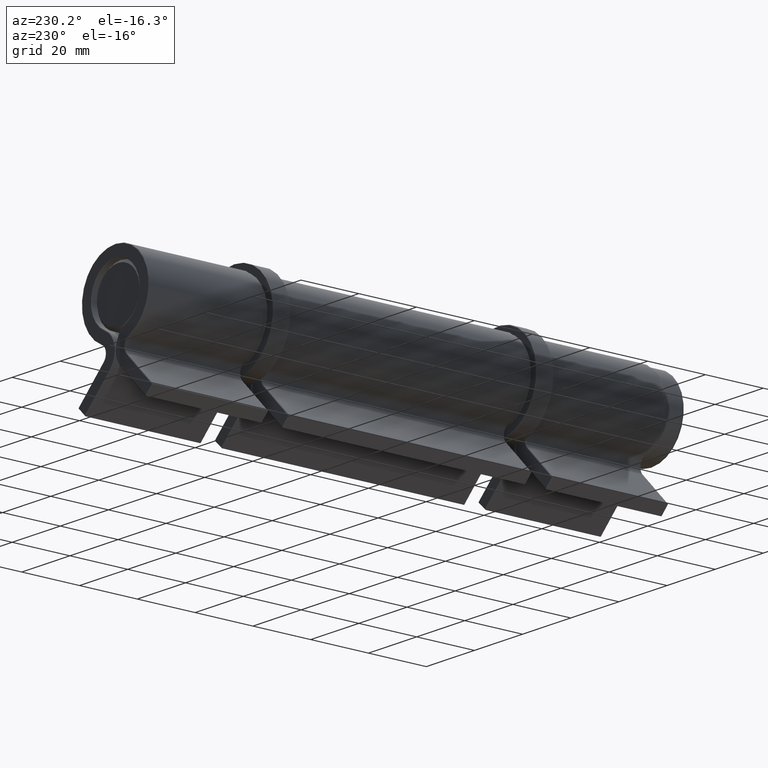
[diagram: clean part render]
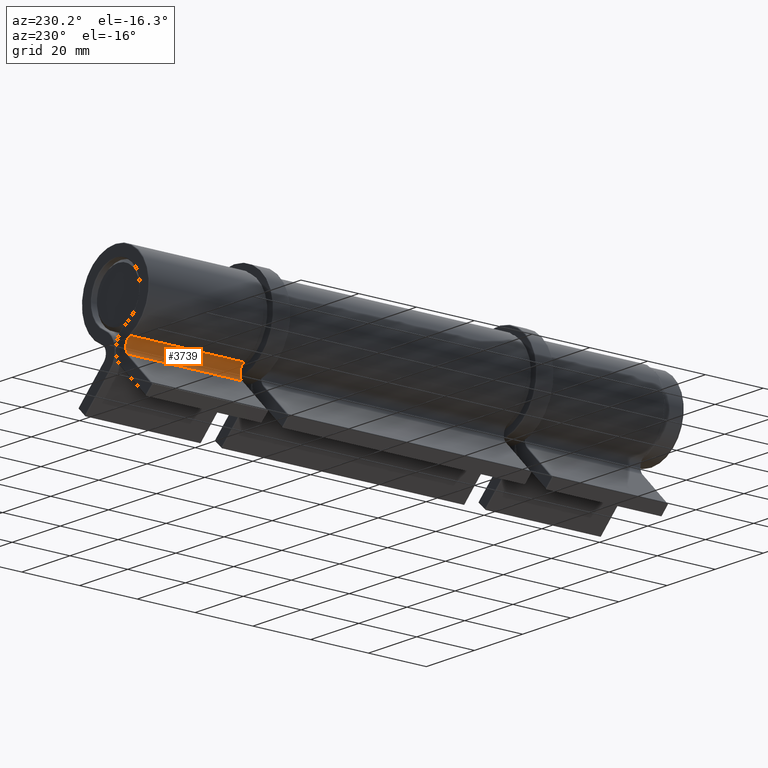
[diagram: same view with one face highlighted and labeled with its STEP entity id]
A machine part, auxiliary view. The second image highlights one B-rep face of the part: STEP entity #3739.
In plain terms, the highlighted cylindrical surface (edge-blend (fillet) strip) has radius 3.0625 mm, axis along (-0, -1, -0).
Its self-contained STEP definition (entity closure, byte-faithful):
#494 = ORIENTED_EDGE ( 'NONE', *, *, #2553, .T. ) ;
#597 = CARTESIAN_POINT ( 'NONE',  ( -5.835897758114223954, 40.00000000000001421, 0.002266975790029407412 ) ) ;
#600 = VECTOR ( 'NONE', #1857, 1000.000000000000000 ) ;
#721 = CARTESIAN_POINT ( 'NONE',  ( -4.946985679854701168, 0.2500000000000002220, -4.946985679854713602 ) ) ;
#949 = CIRCLE ( 'NONE', #4392, 3.062500673414398911 ) ;
#1490 = DIRECTION ( 'NONE',  ( -0.000000000000000000, -1.000000000000000000, -0.000000000000000000 ) ) ;
#1553 = VERTEX_POINT ( 'NONE', #2795 ) ;
#1594 = CYLINDRICAL_SURFACE ( 'NONE', #2308, 3.062500673414398911 ) ;
#1783 = DIRECTION ( 'NONE',  ( -0.000000000000000000, -1.000000000000000000, -0.000000000000000000 ) ) ;
#1857 = DIRECTION ( 'NONE',  ( -0.000000000000000000, -1.000000000000000000, -0.000000000000000000 ) ) ;
#2046 = ORIENTED_EDGE ( 'NONE', *, *, #4512, .T. ) ;
#2087 = CARTESIAN_POINT ( 'NONE',  ( -7.112500673414394292, 40.00000000000001421, -2.781470686295021810 ) ) ;
#2208 = CARTESIAN_POINT ( 'NONE',  ( -4.946985679854701168, 40.00000000000001421, -4.946985679854713602 ) ) ;
#2267 = DIRECTION ( 'NONE',  ( 0.000000000000000000, 0.000000000000000000, 1.000000000000000000 ) ) ;
#2308 = AXIS2_PLACEMENT_3D ( 'NONE', #2087, #1783, #4298 ) ;
#2428 = CARTESIAN_POINT ( 'NONE',  ( -5.835897758114223954, 39.75000000000001421, 0.002266975790029407412 ) ) ;
#2553 = EDGE_CURVE ( 'NONE', #3868, #1553, #3118, .T. ) ;
#2577 = LINE ( 'NONE', #597, #2896 ) ;
#2663 = FACE_OUTER_BOUND ( 'NONE', #4508, .T. ) ;
#2780 = DIRECTION ( 'NONE',  ( -0.000000000000000000, -1.000000000000000000, -0.000000000000000000 ) ) ;
#2795 = CARTESIAN_POINT ( 'NONE',  ( -5.835897758114223954, 0.2500000000000002220, 0.002266975790029407412 ) ) ;
#2896 = VECTOR ( 'NONE', #2780, 1000.000000000000000 ) ;
#3118 = CIRCLE ( 'NONE', #3945, 3.062500673414398911 ) ;
#3415 = EDGE_CURVE ( 'NONE', #3635, #4410, #949, .T. ) ;
#3455 = LINE ( 'NONE', #2208, #600 ) ;
#3558 = CARTESIAN_POINT ( 'NONE',  ( -4.946985679854701168, 39.75000000000001421, -4.946985679854713602 ) ) ;
#3610 = DIRECTION ( 'NONE',  ( 8.496602911973016581E-16, 0.000000000000000000, 1.000000000000000000 ) ) ;
#3635 = VERTEX_POINT ( 'NONE', #2428 ) ;
#3739 = ADVANCED_FACE ( 'NONE', ( #2663 ), #1594, .F. ) ;
#3848 = ORIENTED_EDGE ( 'NONE', *, *, #4289, .F. ) ;
#3868 = VERTEX_POINT ( 'NONE', #721 ) ;
#3945 = AXIS2_PLACEMENT_3D ( 'NONE', #4337, #1490, #3610 ) ;
#4246 = ORIENTED_EDGE ( 'NONE', *, *, #3415, .T. ) ;
#4289 = EDGE_CURVE ( 'NONE', #3635, #1553, #2577, .T. ) ;
#4298 = DIRECTION ( 'NONE',  ( 0.000000000000000000, 0.000000000000000000, -1.000000000000000000 ) ) ;
#4337 = CARTESIAN_POINT ( 'NONE',  ( -7.112500673414394292, 0.2500000000000002220, -2.781470686295021810 ) ) ;
#4392 = AXIS2_PLACEMENT_3D ( 'NONE', #4395, #4406, #2267 ) ;
#4395 = CARTESIAN_POINT ( 'NONE',  ( -7.112500673414394292, 39.75000000000001421, -2.781470686295021810 ) ) ;
#4406 = DIRECTION ( 'NONE',  ( 0.000000000000000000, 1.000000000000000000, 0.000000000000000000 ) ) ;
#4410 = VERTEX_POINT ( 'NONE', #3558 ) ;
#4508 = EDGE_LOOP ( 'NONE', ( #2046, #494, #3848, #4246 ) ) ;
#4512 = EDGE_CURVE ( 'NONE', #4410, #3868, #3455, .T. ) ;